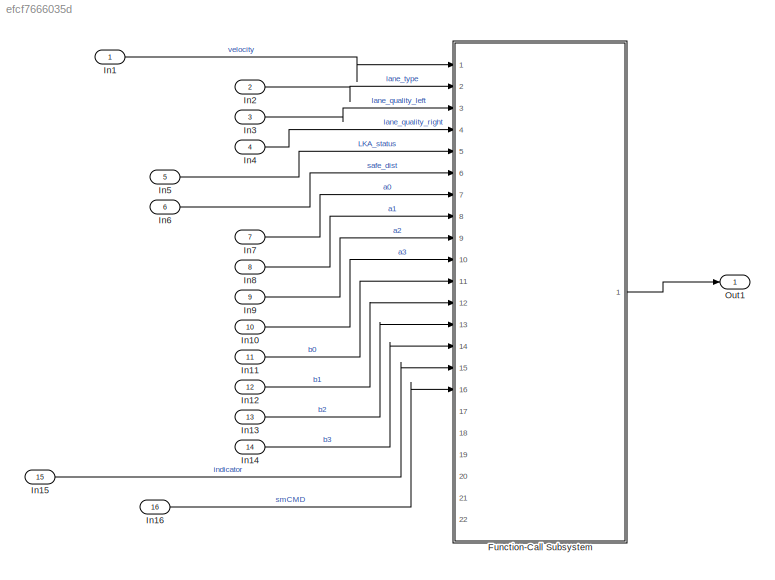
MODEL slx_efcf7666035d
KIND model
CONFIG AbsTol = auto
CONFIG EnableMultiTasking = off
CONFIG FixedStep = auto
CONFIG MaxStep = auto
CONFIG MinStep = auto
CONFIG RelTol = 1e-3
CONFIG SampleTimeConstraint = Unconstrained
CONFIG Solver = FixedStepAuto
CONFIG SolverName = FixedStepAuto
CONFIG StartTime = 0.0
CONFIG StopTime = 10.0
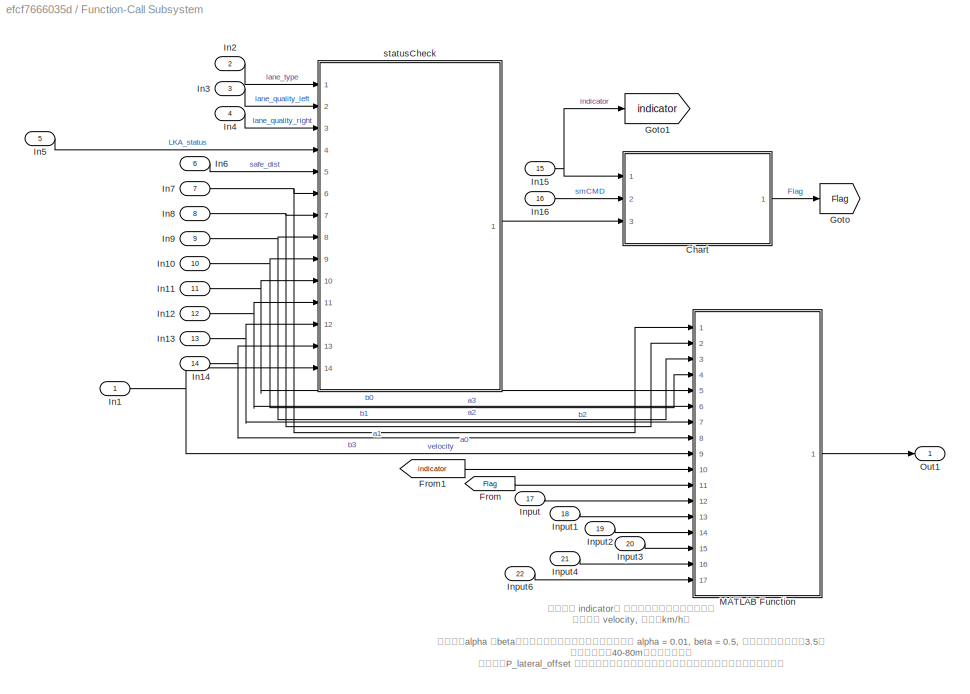
BLOCK [SubSystem] Function-Call Subsystem
  Ports = [22, 1]
  RequestExecContextInheritance = off
  TreatAsAtomicUnit = on
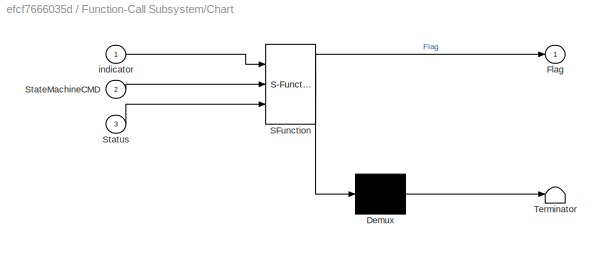
BLOCK [SubSystem] Function-Call Subsystem/Chart
  ErrorFcn = Stateflow.Translate.translate
  PermitHierarchicalResolution = ExplicitOnly
  Ports = [3, 1]
  RequestExecContextInheritance = off
  SFBlockType = Chart
  TreatAsAtomicUnit = on
BLOCK [Demux] Function-Call Subsystem/Chart/ Demux 
  Outputs = 1
  Ports = [1, 1]
BLOCK [S-Function] Function-Call Subsystem/Chart/ SFunction 
  EnableBusSupport = on
  FunctionName = sf_sfun
  PortCounts = [3 2]
  Ports = [3, 2]
  SFcnIsStateOwnerBlock = off
  SFunctionDeploymentMode = off
  Tag = Stateflow S-Function module_2018 3
BLOCK [Terminator] Function-Call Subsystem/Chart/ Terminator 
BLOCK [Outport] Function-Call Subsystem/Chart/Flag
  IconDisplay = Port number
BLOCK [Inport] Function-Call Subsystem/Chart/StateMachineCMD
  IconDisplay = Port number
  Port = 2
BLOCK [Inport] Function-Call Subsystem/Chart/Status
  IconDisplay = Port number
  Port = 3
BLOCK [Inport] Function-Call Subsystem/Chart/indicator
  IconDisplay = Port number
BLOCK [From] Function-Call Subsystem/From
  GotoTag = Flag
BLOCK [From] Function-Call Subsystem/From1
  GotoTag = indicator
BLOCK [Goto] Function-Call Subsystem/Goto
  GotoTag = Flag
BLOCK [Goto] Function-Call Subsystem/Goto1
  GotoTag = indicator
BLOCK [Inport] Function-Call Subsystem/In1
  IconDisplay = Port number
BLOCK [Inport] Function-Call Subsystem/In10
  IconDisplay = Port number
  Port = 10
BLOCK [Inport] Function-Call Subsystem/In11
  IconDisplay = Port number
  Port = 11
BLOCK [Inport] Function-Call Subsystem/In12
  IconDisplay = Port number
  Port = 12
BLOCK [Inport] Function-Call Subsystem/In13
  IconDisplay = Port number
  Port = 13
BLOCK [Inport] Function-Call Subsystem/In14
  IconDisplay = Port number
  Port = 14
BLOCK [Inport] Function-Call Subsystem/In15
  IconDisplay = Port number
  Port = 15
BLOCK [Inport] Function-Call Subsystem/In16
  IconDisplay = Port number
  Port = 16
BLOCK [Inport] Function-Call Subsystem/In2
  IconDisplay = Port number
  Port = 2
BLOCK [Inport] Function-Call Subsystem/In3
  IconDisplay = Port number
  Port = 3
BLOCK [Inport] Function-Call Subsystem/In4
  IconDisplay = Port number
  Port = 4
BLOCK [Inport] Function-Call Subsystem/In5
  IconDisplay = Port number
  Port = 5
BLOCK [Inport] Function-Call Subsystem/In6
  IconDisplay = Port number
  Port = 6
BLOCK [Inport] Function-Call Subsystem/In7
  IconDisplay = Port number
  Port = 7
BLOCK [Inport] Function-Call Subsystem/In8
  IconDisplay = Port number
  Port = 8
BLOCK [Inport] Function-Call Subsystem/In9
  IconDisplay = Port number
  Port = 9
BLOCK [Inport] Function-Call Subsystem/Input
  IconDisplay = Port number
  Port = 17
BLOCK [Inport] Function-Call Subsystem/Input1
  IconDisplay = Port number
  Port = 18
BLOCK [Inport] Function-Call Subsystem/Input2
  IconDisplay = Port number
  Port = 19
BLOCK [Inport] Function-Call Subsystem/Input3
  IconDisplay = Port number
  Port = 20
BLOCK [Inport] Function-Call Subsystem/Input4
  IconDisplay = Port number
  Port = 21
BLOCK [Inport] Function-Call Subsystem/Input6
  IconDisplay = Port number
  Port = 22
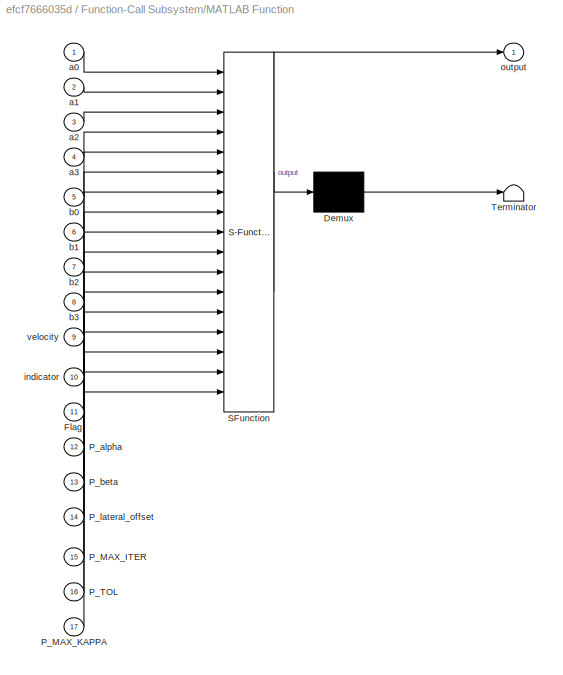
BLOCK [SubSystem] Function-Call Subsystem/MATLAB Function
  ErrorFcn = Stateflow.Translate.translate
  PermitHierarchicalResolution = ExplicitOnly
  Ports = [17, 1]
  RequestExecContextInheritance = off
  SFBlockType = MATLAB Function
  TreatAsAtomicUnit = on
BLOCK [Demux] Function-Call Subsystem/MATLAB Function/ Demux 
  Outputs = 1
  Ports = [1, 1]
BLOCK [S-Function] Function-Call Subsystem/MATLAB Function/ SFunction 
  EnableBusSupport = on
  FunctionName = sf_sfun
  PortCounts = [17 2]
  Ports = [17, 2]
  SFcnIsStateOwnerBlock = off
  SFunctionDeploymentMode = off
  Tag = Stateflow S-Function module_2018 2
BLOCK [Terminator] Function-Call Subsystem/MATLAB Function/ Terminator 
BLOCK [Inport] Function-Call Subsystem/MATLAB Function/Flag
  IconDisplay = Port number
  Port = 11
BLOCK [Inport] Function-Call Subsystem/MATLAB Function/P_MAX_ITER
  IconDisplay = Port number
  Port = 15
BLOCK [Inport] Function-Call Subsystem/MATLAB Function/P_MAX_KAPPA
  IconDisplay = Port number
  Port = 17
BLOCK [Inport] Function-Call Subsystem/MATLAB Function/P_TOL
  IconDisplay = Port number
  Port = 16
BLOCK [Inport] Function-Call Subsystem/MATLAB Function/P_alpha
  IconDisplay = Port number
  Port = 12
BLOCK [Inport] Function-Call Subsystem/MATLAB Function/P_beta
  IconDisplay = Port number
  Port = 13
BLOCK [Inport] Function-Call Subsystem/MATLAB Function/P_lateral_offset
  IconDisplay = Port number
  Port = 14
BLOCK [Inport] Function-Call Subsystem/MATLAB Function/a0
  IconDisplay = Port number
BLOCK [Inport] Function-Call Subsystem/MATLAB Function/a1
  IconDisplay = Port number
  Port = 2
BLOCK [Inport] Function-Call Subsystem/MATLAB Function/a2
  IconDisplay = Port number
  Port = 3
BLOCK [Inport] Function-Call Subsystem/MATLAB Function/a3
  IconDisplay = Port number
  Port = 4
BLOCK [Inport] Function-Call Subsystem/MATLAB Function/b0
  IconDisplay = Port number
  Port = 5
BLOCK [Inport] Function-Call Subsystem/MATLAB Function/b1
  IconDisplay = Port number
  Port = 6
BLOCK [Inport] Function-Call Subsystem/MATLAB Function/b2
  IconDisplay = Port number
  Port = 7
BLOCK [Inport] Function-Call Subsystem/MATLAB Function/b3
  IconDisplay = Port number
  Port = 8
BLOCK [Inport] Function-Call Subsystem/MATLAB Function/indicator
  IconDisplay = Port number
  Port = 10
BLOCK [Outport] Function-Call Subsystem/MATLAB Function/output
  IconDisplay = Port number
BLOCK [Inport] Function-Call Subsystem/MATLAB Function/velocity
  IconDisplay = Port number
  Port = 9
BLOCK [Outport] Function-Call Subsystem/Out1
  IconDisplay = Port number
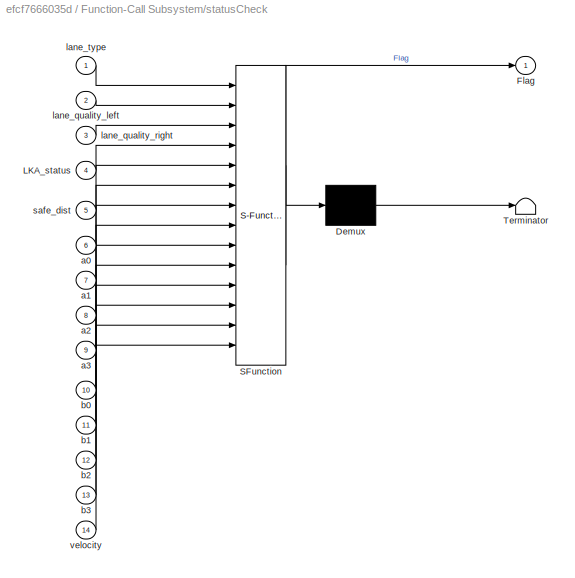
BLOCK [SubSystem] Function-Call Subsystem/statusCheck 
  ErrorFcn = Stateflow.Translate.translate
  PermitHierarchicalResolution = ExplicitOnly
  Ports = [14, 1]
  RequestExecContextInheritance = off
  SFBlockType = MATLAB Function
  TreatAsAtomicUnit = on
BLOCK [Demux] Function-Call Subsystem/statusCheck / Demux 
  Outputs = 1
  Ports = [1, 1]
BLOCK [S-Function] Function-Call Subsystem/statusCheck / SFunction 
  EnableBusSupport = on
  FunctionName = sf_sfun
  PortCounts = [14 2]
  Ports = [14, 2]
  SFcnIsStateOwnerBlock = off
  SFunctionDeploymentMode = off
  Tag = Stateflow S-Function module_2018 1
BLOCK [Terminator] Function-Call Subsystem/statusCheck / Terminator 
BLOCK [Outport] Function-Call Subsystem/statusCheck /Flag
  IconDisplay = Port number
BLOCK [Inport] Function-Call Subsystem/statusCheck /LKA_status
  IconDisplay = Port number
  Port = 4
BLOCK [Inport] Function-Call Subsystem/statusCheck /a0
  IconDisplay = Port number
  Port = 6
BLOCK [Inport] Function-Call Subsystem/statusCheck /a1
  IconDisplay = Port number
  Port = 7
BLOCK [Inport] Function-Call Subsystem/statusCheck /a2
  IconDisplay = Port number
  Port = 8
BLOCK [Inport] Function-Call Subsystem/statusCheck /a3
  IconDisplay = Port number
  Port = 9
BLOCK [Inport] Function-Call Subsystem/statusCheck /b0
  IconDisplay = Port number
  Port = 10
BLOCK [Inport] Function-Call Subsystem/statusCheck /b1
  IconDisplay = Port number
  Port = 11
BLOCK [Inport] Function-Call Subsystem/statusCheck /b2
  IconDisplay = Port number
  Port = 12
BLOCK [Inport] Function-Call Subsystem/statusCheck /b3
  IconDisplay = Port number
  Port = 13
BLOCK [Inport] Function-Call Subsystem/statusCheck /lane_quality_left
  IconDisplay = Port number
  Port = 2
BLOCK [Inport] Function-Call Subsystem/statusCheck /lane_quality_right
  IconDisplay = Port number
  Port = 3
BLOCK [Inport] Function-Call Subsystem/statusCheck /lane_type
  IconDisplay = Port number
BLOCK [Inport] Function-Call Subsystem/statusCheck /safe_dist
  IconDisplay = Port number
  Port = 5
BLOCK [Inport] Function-Call Subsystem/statusCheck /velocity
  IconDisplay = Port number
  Port = 14
BLOCK [Inport] In1
  IconDisplay = Port number
BLOCK [Inport] In10
  IconDisplay = Port number
  Port = 10
BLOCK [Inport] In11
  IconDisplay = Port number
  Port = 11
BLOCK [Inport] In12
  IconDisplay = Port number
  Port = 12
BLOCK [Inport] In13
  IconDisplay = Port number
  Port = 13
BLOCK [Inport] In14
  IconDisplay = Port number
  Port = 14
BLOCK [Inport] In15
  IconDisplay = Port number
  Port = 15
BLOCK [Inport] In16
  IconDisplay = Port number
  Port = 16
BLOCK [Inport] In2
  IconDisplay = Port number
  Port = 2
BLOCK [Inport] In3
  IconDisplay = Port number
  Port = 3
BLOCK [Inport] In4
  IconDisplay = Port number
  Port = 4
BLOCK [Inport] In5
  IconDisplay = Port number
  Port = 5
BLOCK [Inport] In6
  IconDisplay = Port number
  Port = 6
BLOCK [Inport] In7
  IconDisplay = Port number
  Port = 7
BLOCK [Inport] In8
  IconDisplay = Port number
  Port = 8
BLOCK [Inport] In9
  IconDisplay = Port number
  Port = 9
BLOCK [Outport] Out1
  IconDisplay = Port number
ANNOTATION Function-Call Subsystem: 输入量： indicator， 向左变道需要为正，右为负。 输入量： velocity, 单位为km/h。 表定量：alpha 和beta是曲线平滑模块的参数，暂时推荐使用 alpha = 0.01, beta = 0.5, 测试效果在横向偏移3.5， 纵向规划距离40-80m效果可以接受。 表定量：P_lateral_offset 是向横向偏移的绝对值，该值取决于路宽和期望的横向偏移的距离。 表定量：P_MAX_ITER 曲线优化的终止条件,这里暂时设置为10000步。 表定量：P_TOL 优化后的曲线与原曲线之间可以接受的最大偏移量，这里推荐使用0.7m 表定量：P_MAX_KAPPA 曲线的优化目标，希望将曲线的曲率下降到某个值以下，这里推荐是用0.002,也就是曲率半径500m.
LINE Function-Call Subsystem/Chart:1 -> Function-Call Subsystem/Goto:1
LINE Function-Call Subsystem/From1:1 -> Function-Call Subsystem/MATLAB Function:10
LINE Function-Call Subsystem/From:1 -> Function-Call Subsystem/MATLAB Function:11
NET Function-Call Subsystem/In10:1 -> Function-Call Subsystem/MATLAB Function:4, Function-Call Subsystem/statusCheck :9
NET Function-Call Subsystem/In11:1 -> Function-Call Subsystem/MATLAB Function:5, Function-Call Subsystem/statusCheck :10
NET Function-Call Subsystem/In12:1 -> Function-Call Subsystem/MATLAB Function:6, Function-Call Subsystem/statusCheck :11
NET Function-Call Subsystem/In13:1 -> Function-Call Subsystem/MATLAB Function:7, Function-Call Subsystem/statusCheck :12
NET Function-Call Subsystem/In14:1 -> Function-Call Subsystem/MATLAB Function:8, Function-Call Subsystem/statusCheck :13
NET Function-Call Subsystem/In15:1 -> Function-Call Subsystem/Chart:1, Function-Call Subsystem/Goto1:1
LINE Function-Call Subsystem/In16:1 -> Function-Call Subsystem/Chart:2
NET Function-Call Subsystem/In1:1 -> Function-Call Subsystem/MATLAB Function:9, Function-Call Subsystem/statusCheck :14
LINE Function-Call Subsystem/In2:1 -> Function-Call Subsystem/statusCheck :1
LINE Function-Call Subsystem/In3:1 -> Function-Call Subsystem/statusCheck :2
LINE Function-Call Subsystem/In4:1 -> Function-Call Subsystem/statusCheck :3
LINE Function-Call Subsystem/In5:1 -> Function-Call Subsystem/statusCheck :4
LINE Function-Call Subsystem/In6:1 -> Function-Call Subsystem/statusCheck :5
NET Function-Call Subsystem/In7:1 -> Function-Call Subsystem/MATLAB Function:1, Function-Call Subsystem/statusCheck :6
NET Function-Call Subsystem/In8:1 -> Function-Call Subsystem/MATLAB Function:2, Function-Call Subsystem/statusCheck :7
NET Function-Call Subsystem/In9:1 -> Function-Call Subsystem/MATLAB Function:3, Function-Call Subsystem/statusCheck :8
LINE Function-Call Subsystem/Input1:1 -> Function-Call Subsystem/MATLAB Function:13
LINE Function-Call Subsystem/Input2:1 -> Function-Call Subsystem/MATLAB Function:14
LINE Function-Call Subsystem/Input3:1 -> Function-Call Subsystem/MATLAB Function:15
LINE Function-Call Subsystem/Input4:1 -> Function-Call Subsystem/MATLAB Function:16
LINE Function-Call Subsystem/Input6:1 -> Function-Call Subsystem/MATLAB Function:17
LINE Function-Call Subsystem/Input:1 -> Function-Call Subsystem/MATLAB Function:12
LINE Function-Call Subsystem/MATLAB Function:1 -> Function-Call Subsystem/Out1:1
LINE Function-Call Subsystem/statusCheck :1 -> Function-Call Subsystem/Chart:3
LINE Function-Call Subsystem:1 -> Out1:1
LINE In10:1 -> Function-Call Subsystem:10
LINE In11:1 -> Function-Call Subsystem:11
LINE In12:1 -> Function-Call Subsystem:12
LINE In13:1 -> Function-Call Subsystem:13
LINE In14:1 -> Function-Call Subsystem:14
LINE In15:1 -> Function-Call Subsystem:15
LINE In16:1 -> Function-Call Subsystem:16
LINE In1:1 -> Function-Call Subsystem:1
LINE In2:1 -> Function-Call Subsystem:2
LINE In3:1 -> Function-Call Subsystem:3
LINE In4:1 -> Function-Call Subsystem:4
LINE In5:1 -> Function-Call Subsystem:5
LINE In6:1 -> Function-Call Subsystem:6
LINE In7:1 -> Function-Call Subsystem:7
LINE In8:1 -> Function-Call Subsystem:8
LINE In9:1 -> Function-Call Subsystem:9
note: NET lines group one-source signal fan-out (src -> all destinations, sorted); 1:1 wires keep LINE
CHART Function-Call
Subsystem/statusCheck
 states=1 transitions=1
  STATE_LABEL 'eML_blk_kernel()'
  STATE_LABEL 'SCRIPT:\nfunction Flag = functionisOK(lane_type, lane_quality_left, lane_quality_right, ...\n    LKA_status,safe_dist,a0,a1,a2,a3, b0,b1,b2,b3,velocity)\n%% this function provides a status check method, only when the status check Flag = 1, \n% can the lane change method is activated. \n% we consider the follow 5 terms to demtermine whether the method can be\n% activated;\n% 1. lane type, we can only chan...<+1720ch>'
CHART Function-Call
Subsystem/MATLAB Function states=1 transitions=1
  STATE_LABEL 'eML_blk_kernel()'
  STATE_LABEL 'SCRIPT:\nfunction output = LineGeneration(a0,a1,a2,a3, b0,b1,b2,b3,velocity,indicator,Flag,P_alpha,P_beta,P_lateral_offset,...\n    P_MAX_ITER,P_TOL, P_MAX_KAPPA )\n%% the main function, which is used to generate changing lane curve dynamically    \n    if Flag ~= 2\n        output = [];\n        return;\n    end\n    \n    LEN = calculateLEN(velocity);\n    reference_1 = reference_line_generator(a0,a1,a2,a...<+3608ch>'
CHART Function-Call
Subsystem/Chart states=3 transitions=5
  STATE_LABEL 'Standby\ndu:\nFlag = 1;'
  STATE_LABEL 'OFF\nentry:\nFlag = 0;'
  STATE_LABEL 'Run\ndu:\nFlag = 2;'
